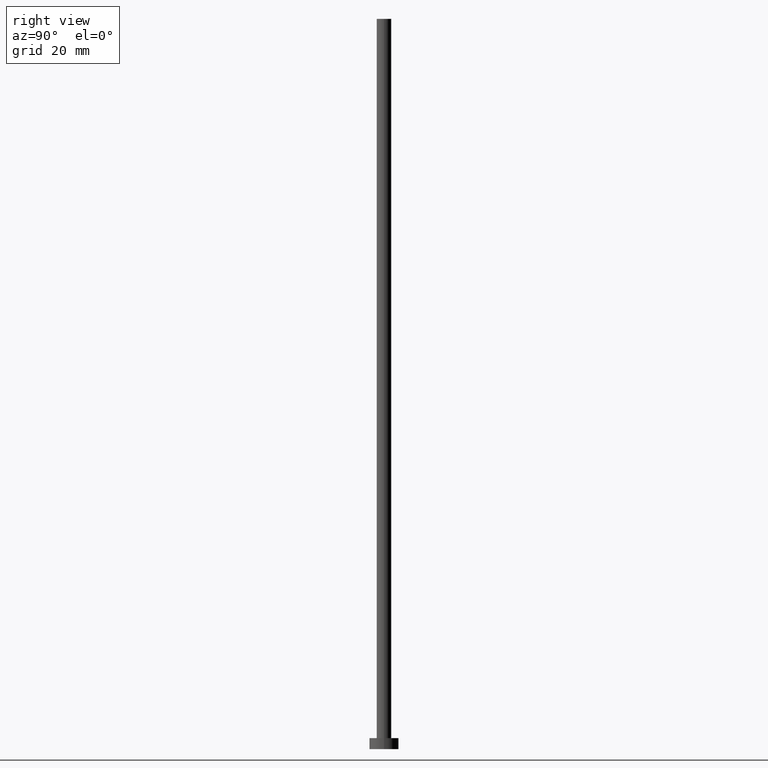
[diagram: clean part render]
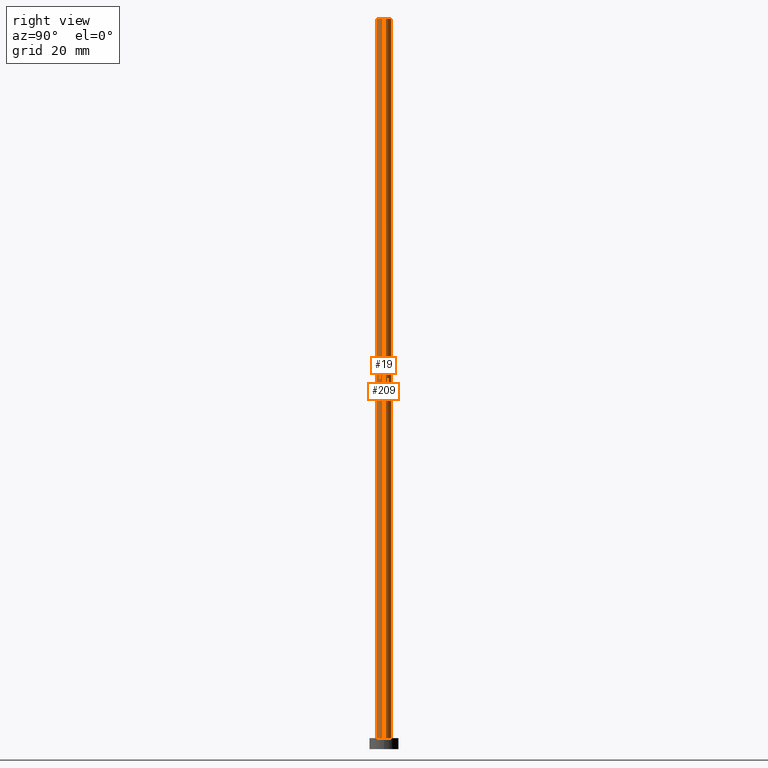
[diagram: same view with one multi-face feature highlighted, each face labeled with its STEP entity id]
A machine part, right view. The highlighted faces form ONE feature: a constant-radius fillet chain: 2 tangent blend faces with common blend radius 2 mm. The faces share edges in the B-rep.
Their STEP definitions:
[1] entity #209 (Cylinder):
#6 = LINE ( 'NONE', #208, #205 ) ;
#21 = VERTEX_POINT ( 'NONE', #207 ) ;
#28 = DIRECTION ( 'NONE',  ( -0.000000000000000000, -0.000000000000000000, -1.000000000000000000 ) ) ;
#36 = DIRECTION ( 'NONE',  ( -0.000000000000000000, -0.000000000000000000, -1.000000000000000000 ) ) ;
#44 = CARTESIAN_POINT ( 'NONE',  ( -2.000000000000000000, 0.000000000000000000, 200.0000000000000000 ) ) ;
#46 = CIRCLE ( 'NONE', #217, 2.000000000000000000 ) ;
#50 = CARTESIAN_POINT ( 'NONE',  ( 0.000000000000000000, 0.000000000000000000, 3.000000000000000000 ) ) ;
#51 = CARTESIAN_POINT ( 'NONE',  ( 2.000000000000000000, 2.449293598294706414E-16, 3.000000000000000000 ) ) ;
#54 = FACE_OUTER_BOUND ( 'NONE', #231, .T. ) ;
#55 = EDGE_CURVE ( 'NONE', #183, #130, #6, .T. ) ;
#70 = DIRECTION ( 'NONE',  ( -0.000000000000000000, -0.000000000000000000, -1.000000000000000000 ) ) ;
#87 = EDGE_CURVE ( 'NONE', #130, #201, #126, .T. ) ;
#92 = CARTESIAN_POINT ( 'NONE',  ( 0.000000000000000000, 0.000000000000000000, 200.0000000000000000 ) ) ;
#98 = CYLINDRICAL_SURFACE ( 'NONE', #247, 2.000000000000000000 ) ;
#109 = ORIENTED_EDGE ( 'NONE', *, *, #182, .F. ) ;
#122 = EDGE_CURVE ( 'NONE', #21, #201, #190, .T. ) ;
#126 = CIRCLE ( 'NONE', #135, 2.000000000000000000 ) ;
#130 = VERTEX_POINT ( 'NONE', #51 ) ;
#132 = ORIENTED_EDGE ( 'NONE', *, *, #87, .T. ) ;
#135 = AXIS2_PLACEMENT_3D ( 'NONE', #50, #219, #137 ) ;
#137 = DIRECTION ( 'NONE',  ( 1.000000000000000000, 0.000000000000000000, 0.000000000000000000 ) ) ;
#140 = DIRECTION ( 'NONE',  ( -1.000000000000000000, 0.000000000000000000, 0.000000000000000000 ) ) ;
#145 = VECTOR ( 'NONE', #28, 1000.000000000000000 ) ;
#161 = ORIENTED_EDGE ( 'NONE', *, *, #55, .T. ) ;
#163 = ORIENTED_EDGE ( 'NONE', *, *, #122, .F. ) ;
#173 = DIRECTION ( 'NONE',  ( 0.000000000000000000, 0.000000000000000000, 1.000000000000000000 ) ) ;
#182 = EDGE_CURVE ( 'NONE', #183, #21, #46, .T. ) ;
#183 = VERTEX_POINT ( 'NONE', #228 ) ;
#190 = LINE ( 'NONE', #44, #145 ) ;
#201 = VERTEX_POINT ( 'NONE', #251 ) ;
#205 = VECTOR ( 'NONE', #70, 1000.000000000000000 ) ;
#207 = CARTESIAN_POINT ( 'NONE',  ( -2.000000000000000000, 0.000000000000000000, 200.0000000000000000 ) ) ;
#208 = CARTESIAN_POINT ( 'NONE',  ( 2.000000000000000000, 2.449293598294706414E-16, 200.0000000000000000 ) ) ;
#209 = ADVANCED_FACE ( 'NONE', ( #54 ), #98, .T. ) ;
#210 = DIRECTION ( 'NONE',  ( 1.000000000000000000, 0.000000000000000000, 0.000000000000000000 ) ) ;
#217 = AXIS2_PLACEMENT_3D ( 'NONE', #92, #173, #210 ) ;
#219 = DIRECTION ( 'NONE',  ( 0.000000000000000000, 0.000000000000000000, 1.000000000000000000 ) ) ;
#228 = CARTESIAN_POINT ( 'NONE',  ( 2.000000000000000000, 2.449293598294706414E-16, 200.0000000000000000 ) ) ;
#231 = EDGE_LOOP ( 'NONE', ( #109, #161, #132, #163 ) ) ;
#247 = AXIS2_PLACEMENT_3D ( 'NONE', #252, #36, #140 ) ;
#251 = CARTESIAN_POINT ( 'NONE',  ( -2.000000000000000000, 0.000000000000000000, 3.000000000000000000 ) ) ;
#252 = CARTESIAN_POINT ( 'NONE',  ( 0.000000000000000000, 0.000000000000000000, 200.0000000000000000 ) ) ;
[2] entity #19 (Cylinder):
#1 = ORIENTED_EDGE ( 'NONE', *, *, #162, .T. ) ;
#6 = LINE ( 'NONE', #208, #205 ) ;
#19 = ADVANCED_FACE ( 'NONE', ( #90 ), #194, .T. ) ;
#21 = VERTEX_POINT ( 'NONE', #207 ) ;
#24 = CARTESIAN_POINT ( 'NONE',  ( 0.000000000000000000, 0.000000000000000000, 200.0000000000000000 ) ) ;
#25 = CIRCLE ( 'NONE', #61, 2.000000000000000000 ) ;
#27 = CIRCLE ( 'NONE', #120, 2.000000000000000000 ) ;
#28 = DIRECTION ( 'NONE',  ( -0.000000000000000000, -0.000000000000000000, -1.000000000000000000 ) ) ;
#44 = CARTESIAN_POINT ( 'NONE',  ( -2.000000000000000000, 0.000000000000000000, 200.0000000000000000 ) ) ;
#45 = DIRECTION ( 'NONE',  ( 0.000000000000000000, 0.000000000000000000, 1.000000000000000000 ) ) ;
#51 = CARTESIAN_POINT ( 'NONE',  ( 2.000000000000000000, 2.449293598294706414E-16, 3.000000000000000000 ) ) ;
#53 = AXIS2_PLACEMENT_3D ( 'NONE', #86, #191, #223 ) ;
#55 = EDGE_CURVE ( 'NONE', #183, #130, #6, .T. ) ;
#61 = AXIS2_PLACEMENT_3D ( 'NONE', #24, #45, #112 ) ;
#63 = ORIENTED_EDGE ( 'NONE', *, *, #55, .F. ) ;
#70 = DIRECTION ( 'NONE',  ( -0.000000000000000000, -0.000000000000000000, -1.000000000000000000 ) ) ;
#86 = CARTESIAN_POINT ( 'NONE',  ( 0.000000000000000000, 0.000000000000000000, 200.0000000000000000 ) ) ;
#90 = FACE_OUTER_BOUND ( 'NONE', #232, .T. ) ;
#112 = DIRECTION ( 'NONE',  ( 1.000000000000000000, 0.000000000000000000, 0.000000000000000000 ) ) ;
#117 = ORIENTED_EDGE ( 'NONE', *, *, #122, .T. ) ;
#120 = AXIS2_PLACEMENT_3D ( 'NONE', #222, #204, #134 ) ;
#122 = EDGE_CURVE ( 'NONE', #21, #201, #190, .T. ) ;
#130 = VERTEX_POINT ( 'NONE', #51 ) ;
#134 = DIRECTION ( 'NONE',  ( 1.000000000000000000, 0.000000000000000000, 0.000000000000000000 ) ) ;
#145 = VECTOR ( 'NONE', #28, 1000.000000000000000 ) ;
#154 = ORIENTED_EDGE ( 'NONE', *, *, #179, .F. ) ;
#162 = EDGE_CURVE ( 'NONE', #201, #130, #27, .T. ) ;
#179 = EDGE_CURVE ( 'NONE', #21, #183, #25, .T. ) ;
#183 = VERTEX_POINT ( 'NONE', #228 ) ;
#190 = LINE ( 'NONE', #44, #145 ) ;
#191 = DIRECTION ( 'NONE',  ( -0.000000000000000000, -0.000000000000000000, -1.000000000000000000 ) ) ;
#194 = CYLINDRICAL_SURFACE ( 'NONE', #53, 2.000000000000000000 ) ;
#201 = VERTEX_POINT ( 'NONE', #251 ) ;
#204 = DIRECTION ( 'NONE',  ( 0.000000000000000000, 0.000000000000000000, 1.000000000000000000 ) ) ;
#205 = VECTOR ( 'NONE', #70, 1000.000000000000000 ) ;
#207 = CARTESIAN_POINT ( 'NONE',  ( -2.000000000000000000, 0.000000000000000000, 200.0000000000000000 ) ) ;
#208 = CARTESIAN_POINT ( 'NONE',  ( 2.000000000000000000, 2.449293598294706414E-16, 200.0000000000000000 ) ) ;
#222 = CARTESIAN_POINT ( 'NONE',  ( 0.000000000000000000, 0.000000000000000000, 3.000000000000000000 ) ) ;
#223 = DIRECTION ( 'NONE',  ( -1.000000000000000000, 0.000000000000000000, 0.000000000000000000 ) ) ;
#228 = CARTESIAN_POINT ( 'NONE',  ( 2.000000000000000000, 2.449293598294706414E-16, 200.0000000000000000 ) ) ;
#232 = EDGE_LOOP ( 'NONE', ( #63, #154, #117, #1 ) ) ;
#251 = CARTESIAN_POINT ( 'NONE',  ( -2.000000000000000000, 0.000000000000000000, 3.000000000000000000 ) ) ;